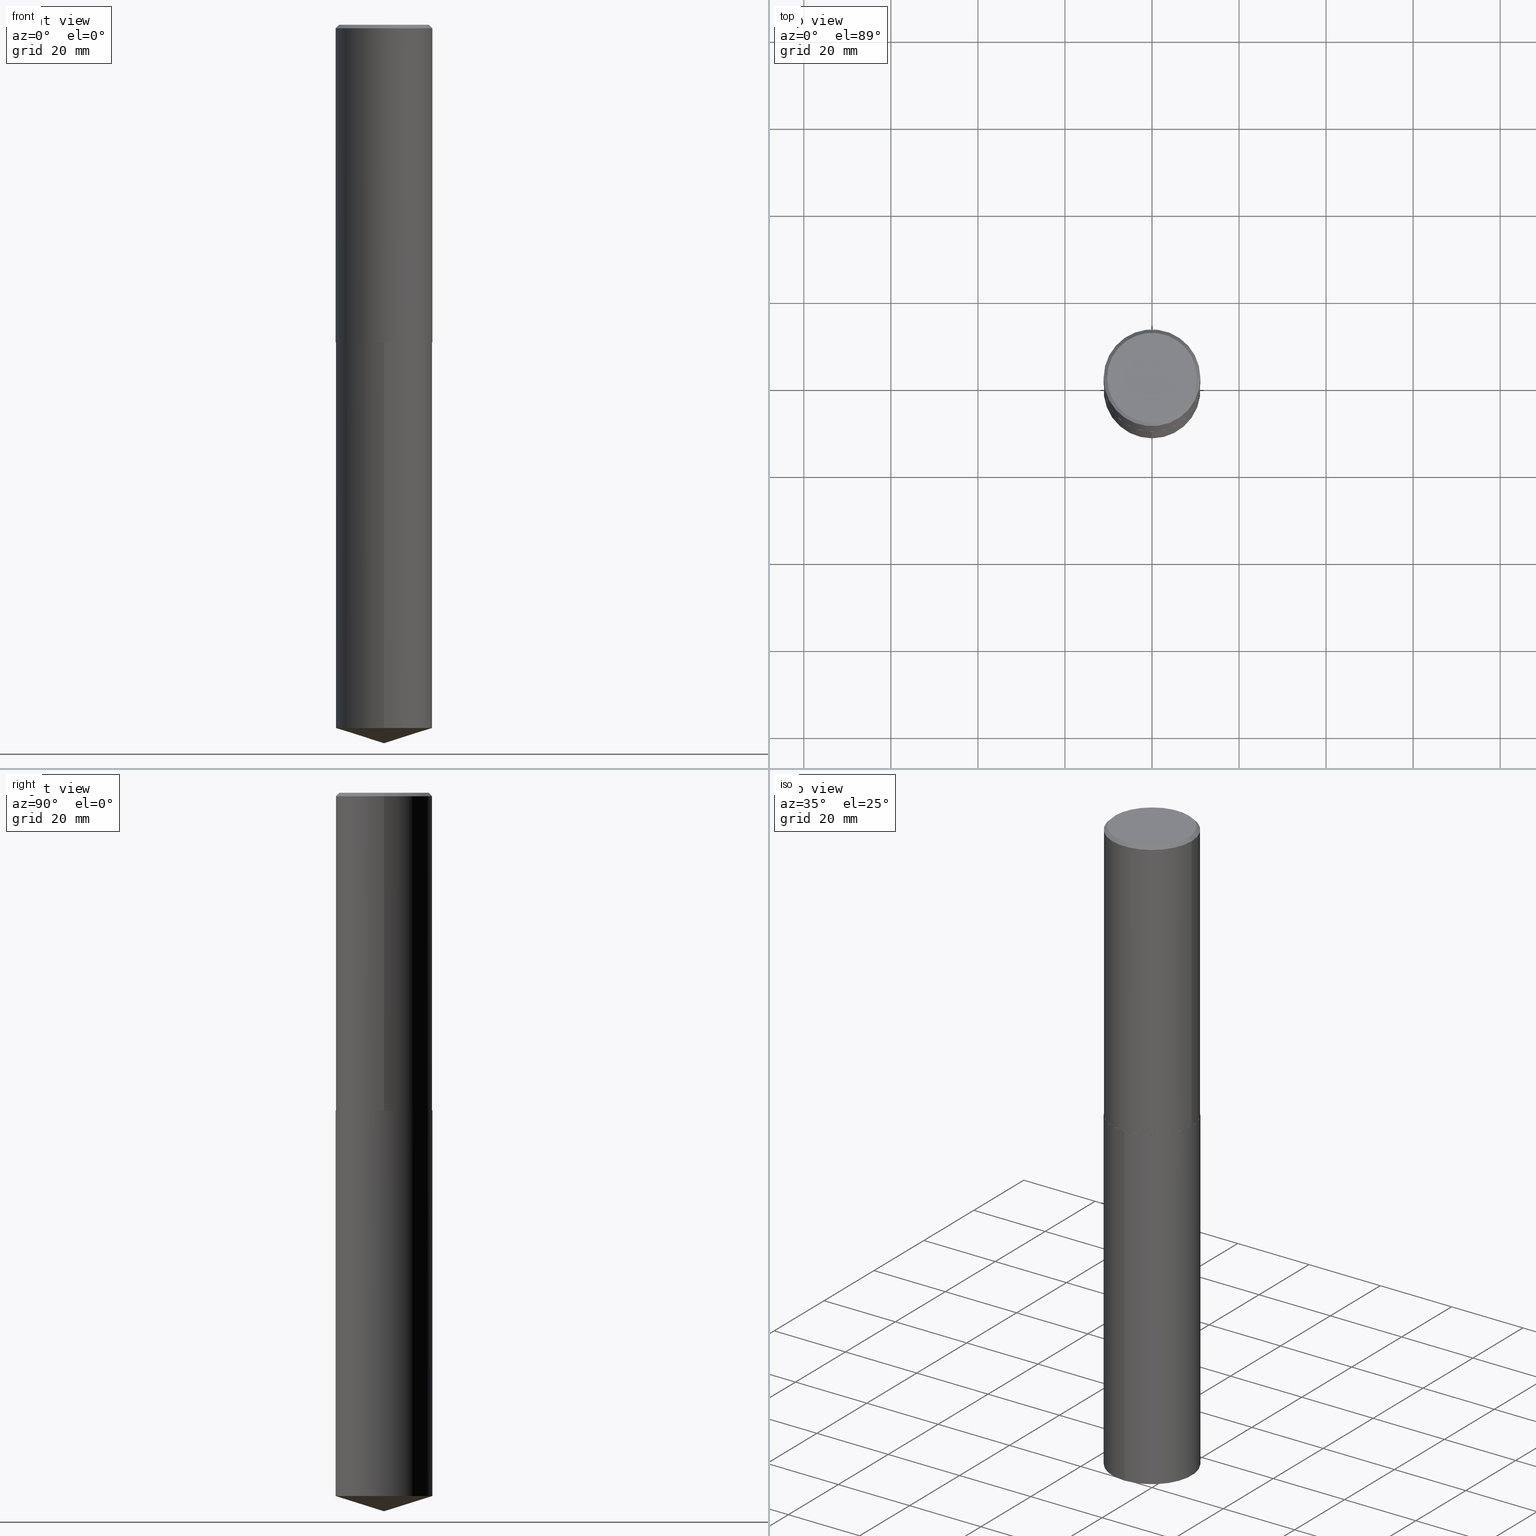
[diagram: canonical four-view strip — front | top / right | iso, engineering-drawing reading convention]
A machine part, canonical four-view strip (front | top / right | iso — engineering-drawing reading convention). The complete STEP part file that produces these views, byte-faithful:
ISO-10303-21;
HEADER;
FILE_DESCRIPTION (( 'STEP AP203' ),
    '1' );
FILE_NAME ('52359.STEP',
    '2024-04-22T18:48:42',
    ( '' ),
    ( '' ),
    'SwSTEP 2.0',
    'SolidWorks 2023',
    '' );
FILE_SCHEMA (( 'CONFIG_CONTROL_DESIGN' ));
ENDSEC;

DATA;
#1 = CONICAL_SURFACE ( 'NONE', #383, 0.4375000000000000000, 0.7853981633974452814 ) ;
#2 = CARTESIAN_POINT ( 'NONE',  ( -3.055046171487670688E-15, -0.4375000000000099920, -2.874999999999998224 ) ) ;
#3 = EDGE_CURVE ( 'NONE', #240, #73, #84, .T. ) ;
#4 = DIRECTION ( 'NONE',  ( -2.444757638973423254E-29, 3.492499770767442833E-15, 1.000000000000000000 ) ) ;
#5 = CARTESIAN_POINT ( 'NONE',  ( 7.030722817782267716E-29, -1.003800884917404311E-14, -2.875000000000000000 ) ) ;
#6 = AXIS2_PLACEMENT_3D ( 'NONE', #18, #255, #373 ) ;
#7 = DATE_AND_TIME ( #355, #106 ) ;
#8 = LOCAL_TIME ( 14, 48, 42.00000000000000000, #354 ) ;
#9 = FACE_OUTER_BOUND ( 'NONE', #261, .T. ) ;
#10 = CARTESIAN_POINT ( 'NONE',  ( 0.000000000000000000, 0.000000000000000000, 0.000000000000000000 ) ) ;
#11 = COORDINATED_UNIVERSAL_TIME_OFFSET ( 5, 0, .BEHIND. ) ;
#12 = APPROVAL_ROLE ( '' ) ;
#13 = EDGE_LOOP ( 'NONE', ( #179, #90, #286 ) ) ;
#14 = ORIENTED_EDGE ( 'NONE', *, *, #188, .T. ) ;
#15 = CYLINDRICAL_SURFACE ( 'NONE', #6, 0.4375000000000001665 ) ;
#16 = CALENDAR_DATE ( 2024, 22, 4 ) ;
#17 = VECTOR ( 'NONE', #283, 39.37007874015748143 ) ;
#18 = CARTESIAN_POINT ( 'NONE',  ( 0.000000000000000000, 0.000000000000000000, 0.000000000000000000 ) ) ;
#19 = FACE_OUTER_BOUND ( 'NONE', #60, .T. ) ;
#20 = DIRECTION ( 'NONE',  ( 1.000000000000000000, -6.982962677686266711E-15, 0.000000000000000000 ) ) ;
#21 = EDGE_LOOP ( 'NONE', ( #256, #101 ) ) ;
#22 = CALENDAR_DATE ( 2024, 22, 4 ) ;
#23 = EDGE_CURVE ( 'NONE', #42, #377, #147, .T. ) ;
#24 = ORIENTED_EDGE ( 'NONE', *, *, #368, .T. ) ;
#25 = AXIS2_PLACEMENT_3D ( 'NONE', #326, #359, #20 ) ;
#26 = EDGE_CURVE ( 'NONE', #377, #42, #216, .T. ) ;
#27 = CARTESIAN_POINT ( 'NONE',  ( 1.589092465332725101E-28, -2.270124850998837979E-14, -6.500000000000000000 ) ) ;
#28 = DIRECTION ( 'NONE',  ( 1.000000000000000000, -6.982962677686266711E-15, 0.000000000000000000 ) ) ;
#29 = CARTESIAN_POINT ( 'NONE',  ( 0.4375000000000003331, -1.309130927999236566E-14, -2.874499999999999833 ) ) ;
#30 = AXIS2_PLACEMENT_3D ( 'NONE', #150, #388, #121 ) ;
#31 = CARTESIAN_POINT ( 'NONE',  ( 7.029500083379174914E-29, -1.003626310850462081E-14, -2.874499999999999833 ) ) ;
#32 = PERSON_AND_ORGANIZATION_ROLE ( 'creator' ) ;
#33 = CARTESIAN_POINT ( 'NONE',  ( 7.030722817782267716E-29, -1.003800884917404311E-14, -2.875000000000000000 ) ) ;
#34 = EDGE_CURVE ( 'NONE', #377, #205, #221, .T. ) ;
#35 = AXIS2_PLACEMENT_3D ( 'NONE', #339, #134, #41 ) ;
#36 = DIRECTION ( 'NONE',  ( -2.445468806185136597E-29, 3.491481338843145583E-15, 1.000000000000000000 ) ) ;
#37 = APPLICATION_PROTOCOL_DEFINITION ( 'international standard', 'config_control_design', 1994, #91 ) ;
#38 = MANIFOLD_SOLID_BREP ( 'Body-Move/Copy2[1]', #223 ) ;
#39 = PLANE ( 'NONE',  #224 ) ;
#40 = PERSON_AND_ORGANIZATION ( #202, #292 ) ;
#41 = DIRECTION ( 'NONE',  ( 1.000000000000000000, -6.982962677686265922E-15, 4.876176775795935793E-29 ) ) ;
#42 = VERTEX_POINT ( 'NONE', #338 ) ;
#43 = APPROVAL_ROLE ( '' ) ;
#44 = APPROVAL_PERSON_ORGANIZATION ( #83, #296, #212 ) ;
#45 =( NAMED_UNIT ( * ) SI_UNIT ( $, .STERADIAN. ) SOLID_ANGLE_UNIT ( ) );
#46 = ORIENTED_EDGE ( 'NONE', *, *, #34, .T. ) ;
#47 = CARTESIAN_POINT ( 'NONE',  ( 7.642090019328589525E-31, -1.091087918388488295E-16, -0.03125000000000015266 ) ) ;
#48 = LINE ( 'NONE', #276, #148 ) ;
#49 = CALENDAR_DATE ( 2024, 22, 4 ) ;
#50 = ORIENTED_EDGE ( 'NONE', *, *, #193, .T. ) ;
#51 = MANIFOLD_SOLID_BREP ( 'Body-Move/Copy2[2]', #96 ) ;
#52 = CARTESIAN_POINT ( 'NONE',  ( -8.035733148792423328E-28, 1.148016704568901521E-13, 32.87007874015748143 ) ) ;
#53 = ADVANCED_FACE ( 'NONE', ( #160 ), #302, .T. ) ;
#54 = ORIENTED_EDGE ( 'NONE', *, *, #319, .F. ) ;
#55 = DIRECTION ( 'NONE',  ( 2.445468806185136597E-29, -3.491481338843145583E-15, -1.000000000000000000 ) ) ;
#56 = ORIENTED_EDGE ( 'NONE', *, *, #213, .T. ) ;
#57 = CARTESIAN_POINT ( 'NONE',  ( 7.029500083379174914E-29, -1.003626310850462081E-14, -2.874499999999999833 ) ) ;
#58 = AXIS2_PLACEMENT_3D ( 'NONE', #335, #215, #366 ) ;
#59 = EDGE_CURVE ( 'NONE', #325, #205, #343, .T. ) ;
#60 = EDGE_LOOP ( 'NONE', ( #109, #50, #112, #238 ) ) ;
#61 = ORIENTED_EDGE ( 'NONE', *, *, #185, .F. ) ;
#62 = CC_DESIGN_PERSON_AND_ORGANIZATION_ASSIGNMENT ( #299, #32, ( #371 ) ) ;
#63 = DIRECTION ( 'NONE',  ( -2.445468806185136597E-29, 3.491481338843145583E-15, 1.000000000000000000 ) ) ;
#64 = VECTOR ( 'NONE', #230, 39.37007874015748143 ) ;
#65 = FACE_OUTER_BOUND ( 'NONE', #174, .T. ) ;
#66 = ADVANCED_FACE ( 'NONE', ( #161 ), #194, .T. ) ;
#67 = DIRECTION ( 'NONE',  ( 1.000000000000000000, -6.982962677686266711E-15, 0.000000000000000000 ) ) ;
#68 = DIRECTION ( 'NONE',  ( -2.444757638973423254E-29, 3.492499770767442833E-15, 1.000000000000000000 ) ) ;
#69 = DIRECTION ( 'NONE',  ( 1.000000000000000000, -6.982962677686265133E-15, 0.000000000000000000 ) ) ;
#70 = DIRECTION ( 'NONE',  ( -2.445468806185136597E-29, 3.491481338843145583E-15, 1.000000000000000000 ) ) ;
#71 = DATE_AND_TIME ( #49, #8 ) ;
#72 = FACE_OUTER_BOUND ( 'NONE', #331, .T. ) ;
#73 = VERTEX_POINT ( 'NONE', #2 ) ;
#74 = PERSON_AND_ORGANIZATION_ROLE ( 'creator' ) ;
#75 = EDGE_CURVE ( 'NONE', #325, #149, #129, .T. ) ;
#76 = PRODUCT ( '52359', '52359', '', ( #131 ) ) ;
#77 = FACE_OUTER_BOUND ( 'NONE', #13, .T. ) ;
#78 = ORIENTED_EDGE ( 'NONE', *, *, #386, .F. ) ;
#79 = ORIENTED_EDGE ( 'NONE', *, *, #317, .T. ) ;
#80 = VECTOR ( 'NONE', #155, 39.37007874015748143 ) ;
#81 = DIRECTION ( 'NONE',  ( 1.000000000000000000, -6.982962677686265133E-15, 0.000000000000000000 ) ) ;
#82 = EDGE_LOOP ( 'NONE', ( #24, #311 ) ) ;
#83 = PERSON_AND_ORGANIZATION ( #202, #292 ) ;
#84 = LINE ( 'NONE', #119, #182 ) ;
#85 = EDGE_LOOP ( 'NONE', ( #78, #262, #222, #61 ) ) ;
#86 = DIRECTION ( 'NONE',  ( -2.444757638973423254E-29, 3.492499770767442833E-15, 1.000000000000000000 ) ) ;
#87 = AXIS2_PLACEMENT_3D ( 'NONE', #248, #36, #94 ) ;
#88 = CC_DESIGN_APPROVAL ( #105, ( #371 ) ) ;
#89 = DIRECTION ( 'NONE',  ( 1.000000000000000000, -6.982962677686266711E-15, 0.000000000000000000 ) ) ;
#90 = ORIENTED_EDGE ( 'NONE', *, *, #151, .T. ) ;
#91 = APPLICATION_CONTEXT ( 'configuration controlled 3d designs of mechanical parts and assemblies' ) ;
#92 = CARTESIAN_POINT ( 'NONE',  ( 7.029500083379174914E-29, -1.003626310850462081E-14, -2.874499999999999833 ) ) ;
#93 = FACE_OUTER_BOUND ( 'NONE', #281, .T. ) ;
#94 = DIRECTION ( 'NONE',  ( 1.000000000000000000, -6.982962677686266711E-15, 4.876067333457690037E-29 ) ) ;
#95 = PERSON_AND_ORGANIZATION_ROLE ( 'design_owner' ) ;
#96 = CLOSED_SHELL ( 'NONE', ( #266, #282, #287, #349, #53, #175, #220, #332 ) ) ;
#97 = CC_DESIGN_DATE_AND_TIME_ASSIGNMENT ( #381, #144, ( #371 ) ) ;
#98 = LINE ( 'NONE', #162, #323 ) ;
#99 = LINE ( 'NONE', #229, #142 ) ;
#100 = DIRECTION ( 'NONE',  ( 1.000000000000000000, -6.982962677686266711E-15, 0.000000000000000000 ) ) ;
#101 = ORIENTED_EDGE ( 'NONE', *, *, #75, .T. ) ;
#102 = APPROVAL_STATUS ( 'not_yet_approved' ) ;
#103 = CALENDAR_DATE ( 2024, 22, 4 ) ;
#104 = ORIENTED_EDGE ( 'NONE', *, *, #59, .T. ) ;
#105 = APPROVAL ( #227, 'UNSPECIFIED' ) ;
#106 = LOCAL_TIME ( 14, 48, 42.00000000000000000, #107 ) ;
#107 = COORDINATED_UNIVERSAL_TIME_OFFSET ( 5, 0, .BEHIND. ) ;
#108 = EDGE_CURVE ( 'NONE', #241, #377, #187, .T. ) ;
#109 = ORIENTED_EDGE ( 'NONE', *, *, #26, .T. ) ;
#110 = PERSON_AND_ORGANIZATION ( #202, #292 ) ;
#111 = ORIENTED_EDGE ( 'NONE', *, *, #201, .T. ) ;
#112 = ORIENTED_EDGE ( 'NONE', *, *, #213, .F. ) ;
#113 = CC_DESIGN_PERSON_AND_ORGANIZATION_ASSIGNMENT ( #305, #95, ( #76 ) ) ;
#114 = DIRECTION ( 'NONE',  ( 2.444757638973422973E-29, -3.492499770767442833E-15, -1.000000000000000000 ) ) ;
#115 = AXIS2_PLACEMENT_3D ( 'NONE', #295, #327, #28 ) ;
#116 = CARTESIAN_POINT ( 'NONE',  ( 7.642090019328589525E-31, -1.091087918388488295E-16, -0.03125000000000015266 ) ) ;
#117 = CC_DESIGN_APPROVAL ( #342, ( #274 ) ) ;
#118 = CARTESIAN_POINT ( 'NONE',  ( 1.555573151789238783E-28, -2.221655385350717399E-14, -6.362056779865446821 ) ) ;
#119 = CARTESIAN_POINT ( 'NONE',  ( -3.055046171487670688E-15, -0.4375000000000099920, -2.874999999999998224 ) ) ;
#120 = ORIENTED_EDGE ( 'NONE', *, *, #108, .T. ) ;
#121 = DIRECTION ( 'NONE',  ( -6.982962677686266711E-15, -1.000000000000000000, 3.500519750498682344E-15 ) ) ;
#122 = AXIS2_PLACEMENT_3D ( 'NONE', #57, #153, #89 ) ;
#123 = ORIENTED_EDGE ( 'NONE', *, *, #319, .T. ) ;
#124 = LOCAL_TIME ( 14, 48, 42.00000000000000000, #138 ) ;
#125 = CARTESIAN_POINT ( 'NONE',  ( -1.871772216193324936E-46, 2.672394653685602413E-32, 7.654042494670940597E-18 ) ) ;
#126 = EDGE_CURVE ( 'NONE', #149, #325, #135, .T. ) ;
#127 = ADVANCED_BREP_SHAPE_REPRESENTATION ( '52359', ( #38, #51, #271 ), #190 ) ;
#128 = CARTESIAN_POINT ( 'NONE',  ( -0.4375000000000000000, 2.945937379648892585E-15, -0.03125000000000015266 ) ) ;
#129 = CIRCLE ( 'NONE', #87, 0.4062500000000000000 ) ;
#130 = AXIS2_PLACEMENT_3D ( 'NONE', #357, #207, #316 ) ;
#131 = MECHANICAL_CONTEXT ( 'NONE', #159, 'mechanical' ) ;
#132 = APPROVAL_DATE_TIME ( #337, #105 ) ;
#133 = CARTESIAN_POINT ( 'NONE',  ( 7.030722817782267716E-29, -1.003800884917404311E-14, -2.875000000000000000 ) ) ;
#134 = DIRECTION ( 'NONE',  ( -2.438088387897960049E-29, 3.491481338843145188E-15, 1.000000000000000000 ) ) ;
#135 = CIRCLE ( 'NONE', #154, 0.4062500000000000000 ) ;
#136 = CYLINDRICAL_SURFACE ( 'NONE', #209, 0.4375000000000000000 ) ;
#137 = DIRECTION ( 'NONE',  ( 2.438088387897960049E-29, -3.491481338843145188E-15, -1.000000000000000000 ) ) ;
#138 = COORDINATED_UNIVERSAL_TIME_OFFSET ( 5, 0, .BEHIND. ) ;
#139 = ADVANCED_FACE ( 'NONE', ( #9 ), #136, .T. ) ;
#140 = EDGE_LOOP ( 'NONE', ( #208, #385, #123, #358 ) ) ;
#141 = EDGE_CURVE ( 'NONE', #240, #272, #251, .T. ) ;
#142 = VECTOR ( 'NONE', #237, 39.37007874015748854 ) ;
#143 = CONICAL_SURFACE ( 'NONE', #157, 0.4375000000000003331, 0.7853981633971751641 ) ;
#144 = DATE_TIME_ROLE ( 'creation_date' ) ;
#145 = DIRECTION ( 'NONE',  ( -2.445468806185136877E-29, 3.491481338843145188E-15, 1.000000000000000000 ) ) ;
#146 = ORIENTED_EDGE ( 'NONE', *, *, #317, .F. ) ;
#147 = CIRCLE ( 'NONE', #115, 0.4375000000000003331 ) ;
#148 = VECTOR ( 'NONE', #145, 39.37007874015748143 ) ;
#149 = VERTEX_POINT ( 'NONE', #199 ) ;
#150 = CARTESIAN_POINT ( 'NONE',  ( -8.035733148792423328E-28, 1.148016704568901521E-13, 32.87007874015748143 ) ) ;
#151 = EDGE_CURVE ( 'NONE', #244, #272, #99, .T. ) ;
#152 = CC_DESIGN_DATE_AND_TIME_ASSIGNMENT ( #71, #312, ( #329 ) ) ;
#153 = DIRECTION ( 'NONE',  ( -2.445468806185136597E-29, 3.491481338843145583E-15, 1.000000000000000000 ) ) ;
#154 = AXIS2_PLACEMENT_3D ( 'NONE', #125, #63, #189 ) ;
#155 = DIRECTION ( 'NONE',  ( 0.7071067811863543939, -2.468850131080234027E-15, 0.7071067811867406405 ) ) ;
#156 = ORIENTED_EDGE ( 'NONE', *, *, #26, .F. ) ;
#157 = AXIS2_PLACEMENT_3D ( 'NONE', #92, #70, #100 ) ;
#158 = SHAPE_DEFINITION_REPRESENTATION ( #321, #127 ) ;
#159 = APPLICATION_CONTEXT ( 'configuration controlled 3d designs of mechanical parts and assemblies' ) ;
#160 = FACE_OUTER_BOUND ( 'NONE', #353, .T. ) ;
#161 = FACE_OUTER_BOUND ( 'NONE', #85, .T. ) ;
#162 = CARTESIAN_POINT ( 'NONE',  ( 3.108624468950508127E-15, 0.4374999999999899525, -2.875000000000001332 ) ) ;
#163 = CONICAL_SURFACE ( 'NONE', #30, 124.8659371009158576, 1.265363707695893458 ) ;
#164 = DIRECTION ( 'NONE',  ( -2.444757638973423254E-29, 3.492499770767442833E-15, 1.000000000000000000 ) ) ;
#165 = UNCERTAINTY_MEASURE_WITH_UNIT (LENGTH_MEASURE( 1.000000000000000082E-05 ), #254, 'distance_accuracy_value', 'NONE');
#166 = LINE ( 'NONE', #128, #64 ) ;
#167 = EDGE_CURVE ( 'NONE', #288, #42, #279, .T. ) ;
#168 = CARTESIAN_POINT ( 'NONE',  ( -9.358861080966624678E-47, 1.336197326842801207E-32, 3.827021247335470298E-18 ) ) ;
#169 = DIRECTION ( 'NONE',  ( -2.444757638973423254E-29, 3.492499770767442833E-15, 1.000000000000000000 ) ) ;
#170 = APPROVAL_PERSON_ORGANIZATION ( #378, #342, #43 ) ;
#171 = PERSON_AND_ORGANIZATION_ROLE ( 'design_supplier' ) ;
#172 = CARTESIAN_POINT ( 'NONE',  ( 1.555573151789238783E-28, -2.221655385350717399E-14, -6.362056779865446821 ) ) ;
#173 = CARTESIAN_POINT ( 'NONE',  ( -0.4375000000000003331, -6.927638639554180923E-15, -2.874499999999999833 ) ) ;
#174 = EDGE_LOOP ( 'NONE', ( #111, #211, #156, #379 ) ) ;
#175 = ADVANCED_FACE ( 'NONE', ( #72 ), #15, .T. ) ;
#176 = DIRECTION ( 'NONE',  ( -2.444757638973423254E-29, 3.492499770767442833E-15, 1.000000000000000000 ) ) ;
#177 = CIRCLE ( 'NONE', #25, 0.4375000000000000000 ) ;
#178 = DIRECTION ( 'NONE',  ( 6.982962677686265922E-15, 1.000000000000000000, -3.492499770767442833E-15 ) ) ;
#179 = ORIENTED_EDGE ( 'NONE', *, *, #188, .F. ) ;
#180 = CARTESIAN_POINT ( 'NONE',  ( 3.108624468950594508E-15, 0.4374999999999900080, -2.875000000000001332 ) ) ;
#181 = DIRECTION ( 'NONE',  ( -2.445468806185136597E-29, 3.491481338843145583E-15, 1.000000000000000000 ) ) ;
#182 = VECTOR ( 'NONE', #214, 39.37007874015748143 ) ;
#183 = AXIS2_PLACEMENT_3D ( 'NONE', #118, #86, #267 ) ;
#184 = FACE_OUTER_BOUND ( 'NONE', #140, .T. ) ;
#185 = EDGE_CURVE ( 'NONE', #257, #73, #195, .T. ) ;
#186 = ORIENTED_EDGE ( 'NONE', *, *, #250, .F. ) ;
#187 = LINE ( 'NONE', #29, #80 ) ;
#188 = EDGE_CURVE ( 'NONE', #244, #240, #351, .T. ) ;
#189 = DIRECTION ( 'NONE',  ( 1.000000000000000000, -6.982962677686266711E-15, 4.876067333457690037E-29 ) ) ;
#190 =( GEOMETRIC_REPRESENTATION_CONTEXT ( 3 ) GLOBAL_UNCERTAINTY_ASSIGNED_CONTEXT ( ( #165 ) ) GLOBAL_UNIT_ASSIGNED_CONTEXT ( ( #254, #314, #45 ) ) REPRESENTATION_CONTEXT ( 'NONE', 'WORKASPACE' ) );
#191 = CARTESIAN_POINT ( 'NONE',  ( 0.4375000000000000000, -3.110576665863893765E-15, -0.03125000000000015266 ) ) ;
#192 = CARTESIAN_POINT ( 'NONE',  ( 0.4375000000000003331, -1.309130927999236566E-14, -2.874499999999999833 ) ) ;
#193 = EDGE_CURVE ( 'NONE', #42, #284, #48, .T. ) ;
#194 = CYLINDRICAL_SURFACE ( 'NONE', #375, 0.4375000000000000000 ) ;
#195 = CIRCLE ( 'NONE', #328, 0.4375000000000000000 ) ;
#196 = ADVANCED_FACE ( 'NONE', ( #197 ), #39, .F. ) ;
#197 = FACE_OUTER_BOUND ( 'NONE', #82, .T. ) ;
#198 = CARTESIAN_POINT ( 'NONE',  ( -0.4375000000000000000, -1.964061481221295461E-15, -0.03125000000000015266 ) ) ;
#199 = CARTESIAN_POINT ( 'NONE',  ( -0.4062500000000000000, 2.891382983729469218E-15, 7.654042494650910925E-18 ) ) ;
#200 = DIRECTION ( 'NONE',  ( -6.982962677686265133E-15, -1.000000000000000000, 3.746534391310989557E-15 ) ) ;
#201 = EDGE_CURVE ( 'NONE', #241, #288, #203, .T. ) ;
#202 = PERSON ( 'UNSPECIFIED', 'UNSPECIFIED', 'UNSPECIFIED', ('UNSPECIFIED'), ('UNSPECIFIED'), ('UNSPECIFIED') ) ;
#203 = CIRCLE ( 'NONE', #341, 0.4370000000000004436 ) ;
#204 = CARTESIAN_POINT ( 'NONE',  ( 1.589092465332725101E-28, -2.270124850998837979E-14, -6.500000000000000000 ) ) ;
#205 = VERTEX_POINT ( 'NONE', #360 ) ;
#206 = ORIENTED_EDGE ( 'NONE', *, *, #75, .F. ) ;
#207 = DIRECTION ( 'NONE',  ( -2.445468806185136597E-29, 3.491481338843145583E-15, 1.000000000000000000 ) ) ;
#208 = ORIENTED_EDGE ( 'NONE', *, *, #59, .F. ) ;
#209 = AXIS2_PLACEMENT_3D ( 'NONE', #306, #313, #345 ) ;
#210 = CIRCLE ( 'NONE', #130, 0.4375000000000000000 ) ;
#211 = ORIENTED_EDGE ( 'NONE', *, *, #167, .T. ) ;
#212 = APPROVAL_ROLE ( '' ) ;
#213 = EDGE_CURVE ( 'NONE', #205, #284, #177, .T. ) ;
#214 = DIRECTION ( 'NONE',  ( -2.444757638973423254E-29, 3.492499770767442833E-15, 1.000000000000000000 ) ) ;
#215 = DIRECTION ( 'NONE',  ( -2.445468806185136597E-29, 3.491481338843145583E-15, 1.000000000000000000 ) ) ;
#216 = CIRCLE ( 'NONE', #122, 0.4375000000000003331 ) ;
#217 = CC_DESIGN_SECURITY_CLASSIFICATION ( #329, ( #274 ) ) ;
#218 = FACE_OUTER_BOUND ( 'NONE', #239, .T. ) ;
#219 = APPROVAL_DATE_TIME ( #269, #296 ) ;
#220 = ADVANCED_FACE ( 'NONE', ( #184 ), #258, .T. ) ;
#221 = LINE ( 'NONE', #333, #234 ) ;
#222 = ORIENTED_EDGE ( 'NONE', *, *, #3, .T. ) ;
#223 = CLOSED_SHELL ( 'NONE', ( #139, #273, #247, #66, #196 ) ) ;
#224 = AXIS2_PLACEMENT_3D ( 'NONE', #133, #114, #178 ) ;
#225 = DIRECTION ( 'NONE',  ( -2.445468806185136877E-29, 3.491481338843145188E-15, 1.000000000000000000 ) ) ;
#226 = CARTESIAN_POINT ( 'NONE',  ( 0.4062500000000000000, -2.948826988729289034E-15, 7.654042494691170565E-18 ) ) ;
#227 = APPROVAL_STATUS ( 'not_yet_approved' ) ;
#228 = APPROVAL_PERSON_ORGANIZATION ( #40, #105, #12 ) ;
#229 = CARTESIAN_POINT ( 'NONE',  ( 1.589504972235224311E-28, -2.269539252642367238E-14, -6.500000000000000000 ) ) ;
#230 = DIRECTION ( 'NONE',  ( -0.7071067811865453523, 2.468850131082234184E-15, -0.7071067811865496822 ) ) ;
#231 = PERSON_AND_ORGANIZATION_ROLE ( 'classification_officer' ) ;
#232 = CARTESIAN_POINT ( 'NONE',  ( -0.4370000000000004436, -6.930287866728292124E-15, -2.875000000000000000 ) ) ;
#233 = PRODUCT_RELATED_PRODUCT_CATEGORY ( 'detail', '', ( #76 ) ) ;
#234 = VECTOR ( 'NONE', #225, 39.37007874015748143 ) ;
#235 = DIRECTION ( 'NONE',  ( -6.982962677686265133E-15, -1.000000000000000000, 3.746534391310989557E-15 ) ) ;
#236 = SECURITY_CLASSIFICATION_LEVEL ( 'unclassified' ) ;
#237 = DIRECTION ( 'NONE',  ( 6.776566513254261293E-15, 0.9537169507482292641, 0.3007057995042654586 ) ) ;
#238 = ORIENTED_EDGE ( 'NONE', *, *, #34, .F. ) ;
#239 = EDGE_LOOP ( 'NONE', ( #330, #14, #324 ) ) ;
#240 = VERTEX_POINT ( 'NONE', #382 ) ;
#241 = VERTEX_POINT ( 'NONE', #361 ) ;
#242 = EDGE_CURVE ( 'NONE', #272, #240, #252, .T. ) ;
#243 = AXIS2_PLACEMENT_3D ( 'NONE', #116, #293, #264 ) ;
#244 = VERTEX_POINT ( 'NONE', #27 ) ;
#245 = CC_DESIGN_PERSON_AND_ORGANIZATION_ASSIGNMENT ( #363, #231, ( #329 ) ) ;
#246 = CIRCLE ( 'NONE', #336, 0.4370000000000004436 ) ;
#247 = ADVANCED_FACE ( 'NONE', ( #218 ), #163, .T. ) ;
#248 = CARTESIAN_POINT ( 'NONE',  ( -1.871772216193324936E-46, 2.672394653685602413E-32, 7.654042494670940597E-18 ) ) ;
#249 = DIRECTION ( 'NONE',  ( 0.000000000000000000, 0.000000000000000000, 1.000000000000000000 ) ) ;
#250 = EDGE_CURVE ( 'NONE', #284, #205, #210, .T. ) ;
#251 = CIRCLE ( 'NONE', #350, 0.4375000000000000000 ) ;
#252 = CIRCLE ( 'NONE', #183, 0.4375000000000000000 ) ;
#253 = APPROVAL_DATE_TIME ( #7, #342 ) ;
#254 =( CONVERSION_BASED_UNIT ( 'INCH', #340 ) LENGTH_UNIT ( ) NAMED_UNIT ( #390 ) );
#255 = DIRECTION ( 'NONE',  ( -2.445468806185136597E-29, 3.491481338843145583E-15, 1.000000000000000000 ) ) ;
#256 = ORIENTED_EDGE ( 'NONE', *, *, #126, .T. ) ;
#257 = VERTEX_POINT ( 'NONE', #180 ) ;
#258 = CONICAL_SURFACE ( 'NONE', #243, 0.4375000000000000000, 0.7853981633974452814 ) ;
#259 = FACE_OUTER_BOUND ( 'NONE', #387, .T. ) ;
#260 = COORDINATED_UNIVERSAL_TIME_OFFSET ( 5, 0, .BEHIND. ) ;
#261 = EDGE_LOOP ( 'NONE', ( #290, #372, #362, #322 ) ) ;
#262 = ORIENTED_EDGE ( 'NONE', *, *, #242, .T. ) ;
#263 = DIRECTION ( 'NONE',  ( -1.000000000000000000, 6.982962677686266711E-15, 0.000000000000000000 ) ) ;
#264 = DIRECTION ( 'NONE',  ( -1.000000000000000000, 6.982962677686266711E-15, 0.000000000000000000 ) ) ;
#265 = ORIENTED_EDGE ( 'NONE', *, *, #167, .F. ) ;
#266 = ADVANCED_FACE ( 'NONE', ( #259 ), #1, .T. ) ;
#267 = DIRECTION ( 'NONE',  ( -6.982962677686265133E-15, -1.000000000000000000, 2.497689594207326371E-15 ) ) ;
#268 = ORIENTED_EDGE ( 'NONE', *, *, #23, .T. ) ;
#269 = DATE_AND_TIME ( #22, #315 ) ;
#270 = CC_DESIGN_PERSON_AND_ORGANIZATION_ASSIGNMENT ( #110, #171, ( #274 ) ) ;
#271 = AXIS2_PLACEMENT_3D ( 'NONE', #10, #249, #348 ) ;
#272 = VERTEX_POINT ( 'NONE', #356 ) ;
#273 = ADVANCED_FACE ( 'NONE', ( #77 ), #303, .T. ) ;
#274 = PRODUCT_DEFINITION_FORMATION_WITH_SPECIFIED_SOURCE ( 'ANY', '', #76, .NOT_KNOWN. ) ;
#275 = CARTESIAN_POINT ( 'NONE',  ( 7.030722817782267716E-29, -1.003800884917404311E-14, -2.875000000000000000 ) ) ;
#276 = CARTESIAN_POINT ( 'NONE',  ( -0.4375000000000001665, 3.108624468950439496E-15, -2.152034101986522085E-29 ) ) ;
#277 = PLANE ( 'NONE',  #35 ) ;
#278 = CIRCLE ( 'NONE', #298, 0.4375000000000000000 ) ;
#279 = LINE ( 'NONE', #173, #17 ) ;
#280 = APPLICATION_PROTOCOL_DEFINITION ( 'international standard', 'config_control_design', 1994, #159 ) ;
#281 = EDGE_LOOP ( 'NONE', ( #294, #146 ) ) ;
#282 = ADVANCED_FACE ( 'NONE', ( #19 ), #380, .T. ) ;
#283 = DIRECTION ( 'NONE',  ( -0.7071067811863543939, 7.493145998869656807E-15, 0.7071067811867406405 ) ) ;
#284 = VERTEX_POINT ( 'NONE', #198 ) ;
#285 = DIRECTION ( 'NONE',  ( -6.982962677686266711E-15, -1.000000000000000000, 3.500519750498682344E-15 ) ) ;
#286 = ORIENTED_EDGE ( 'NONE', *, *, #141, .F. ) ;
#287 = ADVANCED_FACE ( 'NONE', ( #65 ), #143, .T. ) ;
#288 = VERTEX_POINT ( 'NONE', #232 ) ;
#289 = APPROVAL_STATUS ( 'not_yet_approved' ) ;
#290 = ORIENTED_EDGE ( 'NONE', *, *, #141, .T. ) ;
#291 = VECTOR ( 'NONE', #300, 39.37007874015748143 ) ;
#292 = ORGANIZATION ( 'UNSPECIFIED', 'UNSPECIFIED', '' ) ;
#293 = DIRECTION ( 'NONE',  ( 2.445468806185136597E-29, -3.491481338843145583E-15, -1.000000000000000000 ) ) ;
#294 = ORIENTED_EDGE ( 'NONE', *, *, #201, .F. ) ;
#295 = CARTESIAN_POINT ( 'NONE',  ( 7.029500083379174914E-29, -1.003626310850462081E-14, -2.874499999999999833 ) ) ;
#296 = APPROVAL ( #289, 'UNSPECIFIED' ) ;
#297 = VECTOR ( 'NONE', #318, 39.37007874015748854 ) ;
#298 = AXIS2_PLACEMENT_3D ( 'NONE', #33, #346, #200 ) ;
#299 = PERSON_AND_ORGANIZATION ( #202, #292 ) ;
#300 = DIRECTION ( 'NONE',  ( 0.7071067811865453523, -7.319954787623248157E-15, -0.7071067811865496822 ) ) ;
#301 = PLANE ( 'NONE',  #389 ) ;
#302 = CONICAL_SURFACE ( 'NONE', #364, 0.4375000000000003331, 0.7853981633971751641 ) ;
#303 = CONICAL_SURFACE ( 'NONE', #352, 124.8659371009158576, 1.265363707695893458 ) ;
#304 = DIRECTION ( 'NONE',  ( -6.982962677686265133E-15, -1.000000000000000000, 3.746534391310989557E-15 ) ) ;
#305 = PERSON_AND_ORGANIZATION ( #202, #292 ) ;
#306 = CARTESIAN_POINT ( 'NONE',  ( 7.030722817782267716E-29, -1.003800884917404311E-14, -2.875000000000000000 ) ) ;
#307 =( LENGTH_UNIT ( ) NAMED_UNIT ( * ) SI_UNIT ( $, .METRE. ) );
#308 = CC_DESIGN_PERSON_AND_ORGANIZATION_ASSIGNMENT ( #347, #74, ( #274 ) ) ;
#309 = DESIGN_CONTEXT ( 'detailed design', #91, 'design' ) ;
#310 = DIRECTION ( 'NONE',  ( -2.445468806185136597E-29, 3.491481338843145583E-15, 1.000000000000000000 ) ) ;
#311 = ORIENTED_EDGE ( 'NONE', *, *, #185, .T. ) ;
#312 = DATE_TIME_ROLE ( 'classification_date' ) ;
#313 = DIRECTION ( 'NONE',  ( -2.444757638973423254E-29, 3.492499770767442833E-15, 1.000000000000000000 ) ) ;
#314 =( NAMED_UNIT ( * ) PLANE_ANGLE_UNIT ( ) SI_UNIT ( $, .RADIAN. ) );
#315 = LOCAL_TIME ( 14, 48, 42.00000000000000000, #11 ) ;
#316 = DIRECTION ( 'NONE',  ( 1.000000000000000000, -6.982962677686266711E-15, 0.000000000000000000 ) ) ;
#317 = EDGE_CURVE ( 'NONE', #288, #241, #246, .T. ) ;
#318 = DIRECTION ( 'NONE',  ( -6.659769872151635244E-15, -0.9537169507482271547, 0.3007057995042720644 ) ) ;
#319 = EDGE_CURVE ( 'NONE', #149, #284, #166, .T. ) ;
#320 = ORIENTED_EDGE ( 'NONE', *, *, #23, .F. ) ;
#321 = PRODUCT_DEFINITION_SHAPE ( 'NONE', 'NONE',  #371 ) ;
#322 = ORIENTED_EDGE ( 'NONE', *, *, #3, .F. ) ;
#323 = VECTOR ( 'NONE', #169, 39.37007874015748143 ) ;
#324 = ORIENTED_EDGE ( 'NONE', *, *, #242, .F. ) ;
#325 = VERTEX_POINT ( 'NONE', #226 ) ;
#326 = CARTESIAN_POINT ( 'NONE',  ( 7.642090019328589525E-31, -1.091087918388488295E-16, -0.03125000000000015266 ) ) ;
#327 = DIRECTION ( 'NONE',  ( -2.445468806185136597E-29, 3.491481338843145583E-15, 1.000000000000000000 ) ) ;
#328 = AXIS2_PLACEMENT_3D ( 'NONE', #369, #68, #235 ) ;
#329 = SECURITY_CLASSIFICATION ( '', '', #236 ) ;
#330 = ORIENTED_EDGE ( 'NONE', *, *, #151, .F. ) ;
#331 = EDGE_LOOP ( 'NONE', ( #374, #268, #46, #186 ) ) ;
#332 = ADVANCED_FACE ( 'NONE', ( #344 ), #301, .F. ) ;
#333 = CARTESIAN_POINT ( 'NONE',  ( 0.4375000000000001665, -3.055046171487742869E-15, 2.133327339410722610E-29 ) ) ;
#334 = DIRECTION ( 'NONE',  ( -2.445468806185136597E-29, 3.491481338843145583E-15, 1.000000000000000000 ) ) ;
#335 = CARTESIAN_POINT ( 'NONE',  ( 0.000000000000000000, 0.000000000000000000, 0.000000000000000000 ) ) ;
#336 = AXIS2_PLACEMENT_3D ( 'NONE', #5, #310, #69 ) ;
#337 = DATE_AND_TIME ( #103, #124 ) ;
#338 = CARTESIAN_POINT ( 'NONE',  ( -0.4375000000000003331, -6.927638639554180923E-15, -2.874499999999999833 ) ) ;
#339 = CARTESIAN_POINT ( 'NONE',  ( 7.030722817782267716E-29, -1.003800884917404311E-14, -2.875000000000000000 ) ) ;
#340 = LENGTH_MEASURE_WITH_UNIT ( LENGTH_MEASURE( 0.02539999999999999897 ), #307 );
#341 = AXIS2_PLACEMENT_3D ( 'NONE', #384, #181, #81 ) ;
#342 = APPROVAL ( #102, 'UNSPECIFIED' ) ;
#343 = LINE ( 'NONE', #191, #291 ) ;
#344 = FACE_OUTER_BOUND ( 'NONE', #21, .T. ) ;
#345 = DIRECTION ( 'NONE',  ( -6.982962677686265133E-15, -1.000000000000000000, 3.746534391310989557E-15 ) ) ;
#346 = DIRECTION ( 'NONE',  ( -2.444757638973423254E-29, 3.492499770767442833E-15, 1.000000000000000000 ) ) ;
#347 = PERSON_AND_ORGANIZATION ( #202, #292 ) ;
#348 = DIRECTION ( 'NONE',  ( 1.000000000000000000, 0.000000000000000000, 0.000000000000000000 ) ) ;
#349 = ADVANCED_FACE ( 'NONE', ( #93 ), #277, .F. ) ;
#350 = AXIS2_PLACEMENT_3D ( 'NONE', #172, #4, #370 ) ;
#351 = LINE ( 'NONE', #204, #297 ) ;
#352 = AXIS2_PLACEMENT_3D ( 'NONE', #52, #176, #285 ) ;
#353 = EDGE_LOOP ( 'NONE', ( #265, #79, #120, #320 ) ) ;
#354 = COORDINATED_UNIVERSAL_TIME_OFFSET ( 5, 0, .BEHIND. ) ;
#355 = CALENDAR_DATE ( 2024, 22, 4 ) ;
#356 = CARTESIAN_POINT ( 'NONE',  ( 3.108624468950594902E-15, 0.4374999999999779066, -6.362056779865447709 ) ) ;
#357 = CARTESIAN_POINT ( 'NONE',  ( 7.642090019328589525E-31, -1.091087918388488295E-16, -0.03125000000000015266 ) ) ;
#358 = ORIENTED_EDGE ( 'NONE', *, *, #250, .T. ) ;
#359 = DIRECTION ( 'NONE',  ( -2.445468806185136597E-29, 3.491481338843145583E-15, 1.000000000000000000 ) ) ;
#360 = CARTESIAN_POINT ( 'NONE',  ( 0.4375000000000000000, -3.164154963326590392E-15, -0.03125000000000015266 ) ) ;
#361 = CARTESIAN_POINT ( 'NONE',  ( 0.4370000000000004436, -1.308956353932294494E-14, -2.875000000000000000 ) ) ;
#362 = ORIENTED_EDGE ( 'NONE', *, *, #368, .F. ) ;
#363 = PERSON_AND_ORGANIZATION ( #202, #292 ) ;
#364 = AXIS2_PLACEMENT_3D ( 'NONE', #31, #334, #67 ) ;
#365 = LOCAL_TIME ( 14, 48, 42.00000000000000000, #260 ) ;
#366 = DIRECTION ( 'NONE',  ( 1.000000000000000000, -6.982962677686266711E-15, 4.876176775795935793E-29 ) ) ;
#367 = DIRECTION ( 'NONE',  ( -1.000000000000000000, 6.982962677686265922E-15, -4.876176775795935793E-29 ) ) ;
#368 = EDGE_CURVE ( 'NONE', #73, #257, #278, .T. ) ;
#369 = CARTESIAN_POINT ( 'NONE',  ( 7.030722817782267716E-29, -1.003800884917404311E-14, -2.875000000000000000 ) ) ;
#370 = DIRECTION ( 'NONE',  ( -6.982962677686265133E-15, -1.000000000000000000, 2.497689594207326371E-15 ) ) ;
#371 = PRODUCT_DEFINITION ( 'UNKNOWN', '', #274, #309 ) ;
#372 = ORIENTED_EDGE ( 'NONE', *, *, #386, .T. ) ;
#373 = DIRECTION ( 'NONE',  ( 1.000000000000000000, -6.982962677686266711E-15, 4.876176775795935793E-29 ) ) ;
#374 = ORIENTED_EDGE ( 'NONE', *, *, #193, .F. ) ;
#375 = AXIS2_PLACEMENT_3D ( 'NONE', #275, #164, #304 ) ;
#376 = CC_DESIGN_APPROVAL ( #296, ( #329 ) ) ;
#377 = VERTEX_POINT ( 'NONE', #192 ) ;
#378 = PERSON_AND_ORGANIZATION ( #202, #292 ) ;
#379 = ORIENTED_EDGE ( 'NONE', *, *, #108, .F. ) ;
#380 = CYLINDRICAL_SURFACE ( 'NONE', #58, 0.4375000000000001665 ) ;
#381 = DATE_AND_TIME ( #16, #365 ) ;
#382 = CARTESIAN_POINT ( 'NONE',  ( -3.055046171487586675E-15, -0.4375000000000223710, -6.362056779865445932 ) ) ;
#383 = AXIS2_PLACEMENT_3D ( 'NONE', #47, #55, #263 ) ;
#384 = CARTESIAN_POINT ( 'NONE',  ( 7.030722817782267716E-29, -1.003800884917404311E-14, -2.875000000000000000 ) ) ;
#385 = ORIENTED_EDGE ( 'NONE', *, *, #126, .F. ) ;
#386 = EDGE_CURVE ( 'NONE', #272, #257, #98, .T. ) ;
#387 = EDGE_LOOP ( 'NONE', ( #206, #104, #56, #54 ) ) ;
#388 = DIRECTION ( 'NONE',  ( -2.444757638973423254E-29, 3.492499770767442833E-15, 1.000000000000000000 ) ) ;
#389 = AXIS2_PLACEMENT_3D ( 'NONE', #168, #137, #367 ) ;
#390 = DIMENSIONAL_EXPONENTS ( 1.000000000000000000, 0.000000000000000000, 0.000000000000000000, 0.000000000000000000, 0.000000000000000000, 0.000000000000000000, 0.000000000000000000 ) ;
ENDSEC;
END-ISO-10303-21;
